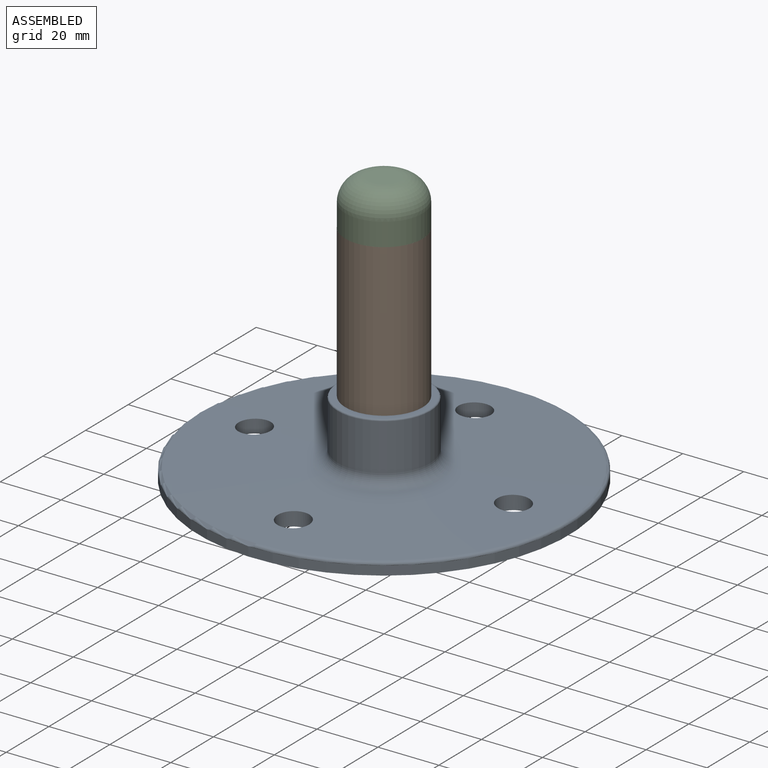
[diagram: assembled view]
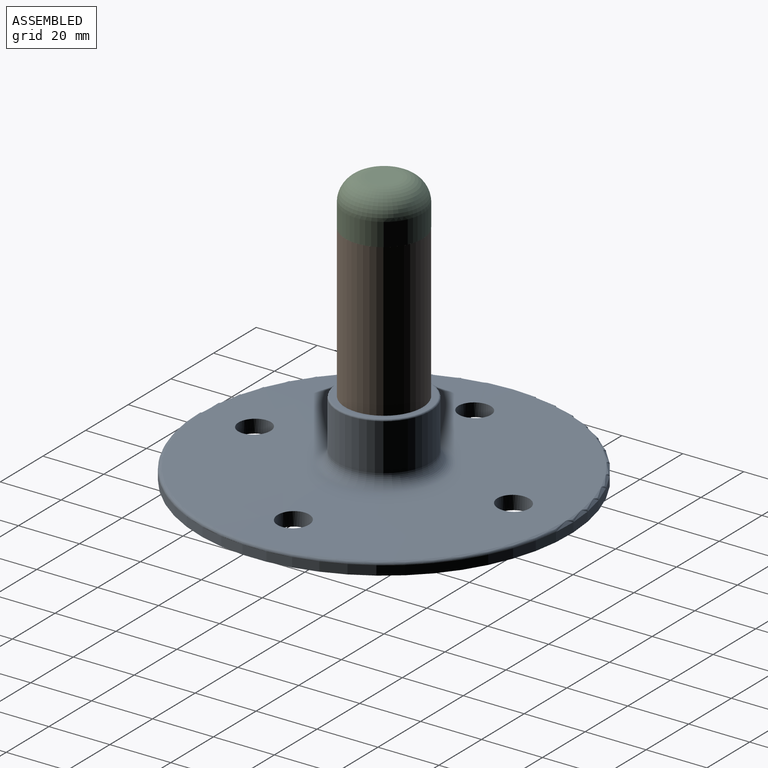
[diagram: assembled view, second angle]
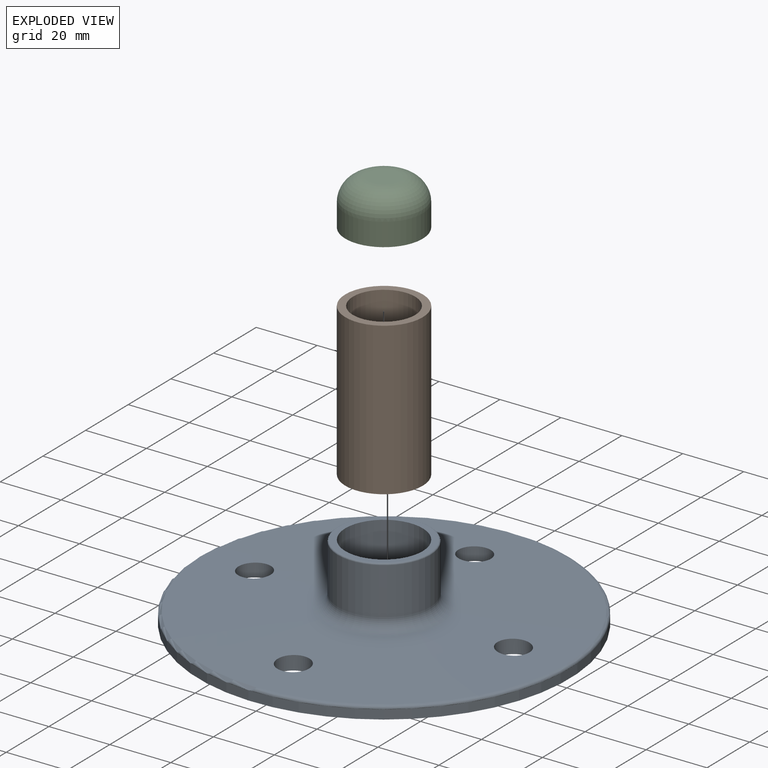
[diagram: exploded view]
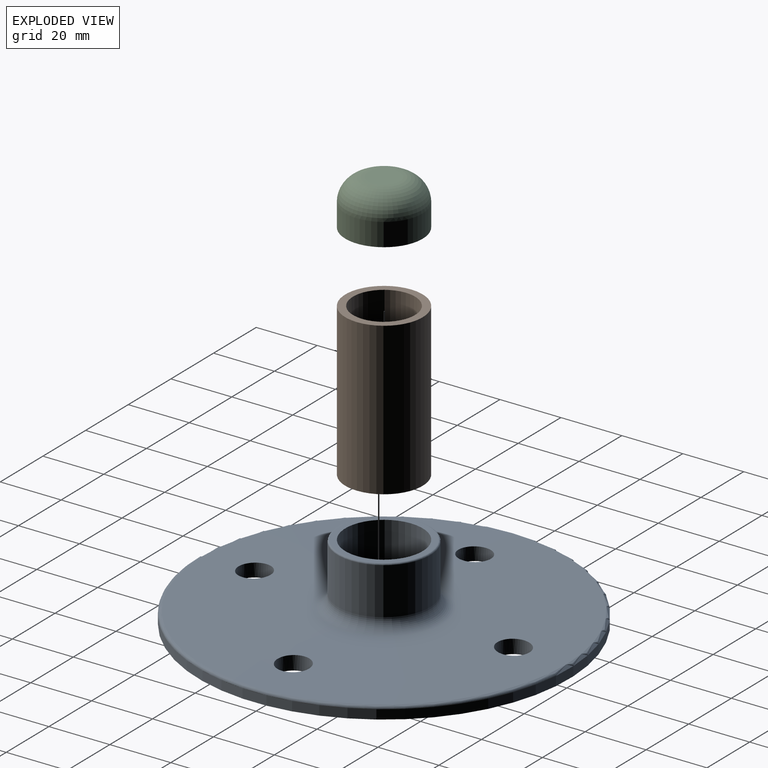
[diagram: exploded view, second angle]
ASSEMBLY  parts=3 mates=2
PART A: 13 faces, bbox 131.7x131.7x25 mm
  f0: cone r=59.85mm half-angle=88.5deg, axis (0,0,-1), area 9763.1mm2, adj f7,f8,f9,f10,f11,f12
  f1: cylinder r=15.2mm len=30.4mm, axis (0,0,-1), area 1471.6mm2, adj f2,f8
  f2: torus R=14.7mm, axis (0,0,-1), area 74.1mm2, adj f1,f3
  f3: plane 29.4x29.4mm, normal (0,0,1), area 172.2mm2, adj f2,f4
  f4: cylinder r=12.7mm len=25.4mm, axis (0,0,-1), area 1994.9mm2, adj f3,f5
  f5: plane 121.64x121.64mm, normal (0,0,-1), area 10767.6mm2, adj f4,f6,f9,f10,f11,f12
  f6: cylinder r=60.82mm len=121.64mm, axis (0,0,-1), area 1156.3mm2, adj f5,f7
  f7: torus R=59.82mm, axis (0,0,-1), area 586.8mm2, adj f0,f6
  f8: torus R=19.2mm, axis (0,0,-1), area 644.9mm2, adj f0,f1
  f9: cylinder r=5.25mm len=10.5mm, axis (0,0,-1), area 147.5mm2, adj f0,f5
  f10: cylinder r=5.25mm len=10.5mm, axis (0,0,-1), area 147.6mm2, adj f0,f5
  f11: cylinder r=5.25mm len=10.5mm, axis (0,0,-1), area 147.6mm2, adj f0,f5
  f12: cylinder r=5.25mm len=10.5mm, axis (0,0,-1), area 147.6mm2, adj f0,f5
PART B: 4 faces, bbox 25.4x25.4x50 mm
  f0: cylinder r=10.2mm len=50mm, axis (0,0,-1), area 3204.4mm2, adj f1,f3
  f1: plane 25.4x25.4mm, normal (0,0,-1), area 179.9mm2, adj f0,f2
  f2: cylinder r=12.7mm len=50mm, axis (0,0,-1), area 3989.8mm2, adj f1,f3
  f3: plane 25.4x25.4mm, normal (0,0,1), area 179.9mm2, adj f0,f2
PART C: 7 faces, bbox 25.4x25.4x15 mm
  f0: plane 10.4x10.4mm, normal (0,0,-1), area 84.9mm2, adj f1
  f1: torus R=5.2mm, axis (0,0,-1), area 413.7mm2, adj f0,f2
  f2: cylinder r=10.2mm len=20.4mm, axis (0,0,-1), area 480.7mm2, adj f1,f3
  f3: plane 25.4x25.4mm, normal (0,0,-1), area 179.9mm2, adj f2,f4
  f4: cylinder r=12.7mm len=25.4mm, axis (0,0,-1), area 598.5mm2, adj f3,f5
  f5: torus R=5.2mm, axis (0,0,-1), area 738.3mm2, adj f4,f6
  f6: plane 10.4x10.4mm, normal (0,0,1), area 84.9mm2, adj f5
PLACE A at identity
PLACE B rot(axis=(1,0,0),180deg) t=(0,0,75)mm
PLACE C t=(0,0,75)mm
MATE fastened B.f0 <-> A.f0  axis (0,0,-1) through (0,0,25)mm
MATE fastened C.f1 <-> B.f0  axis (0,0,-1) through (0,0,75)mm
